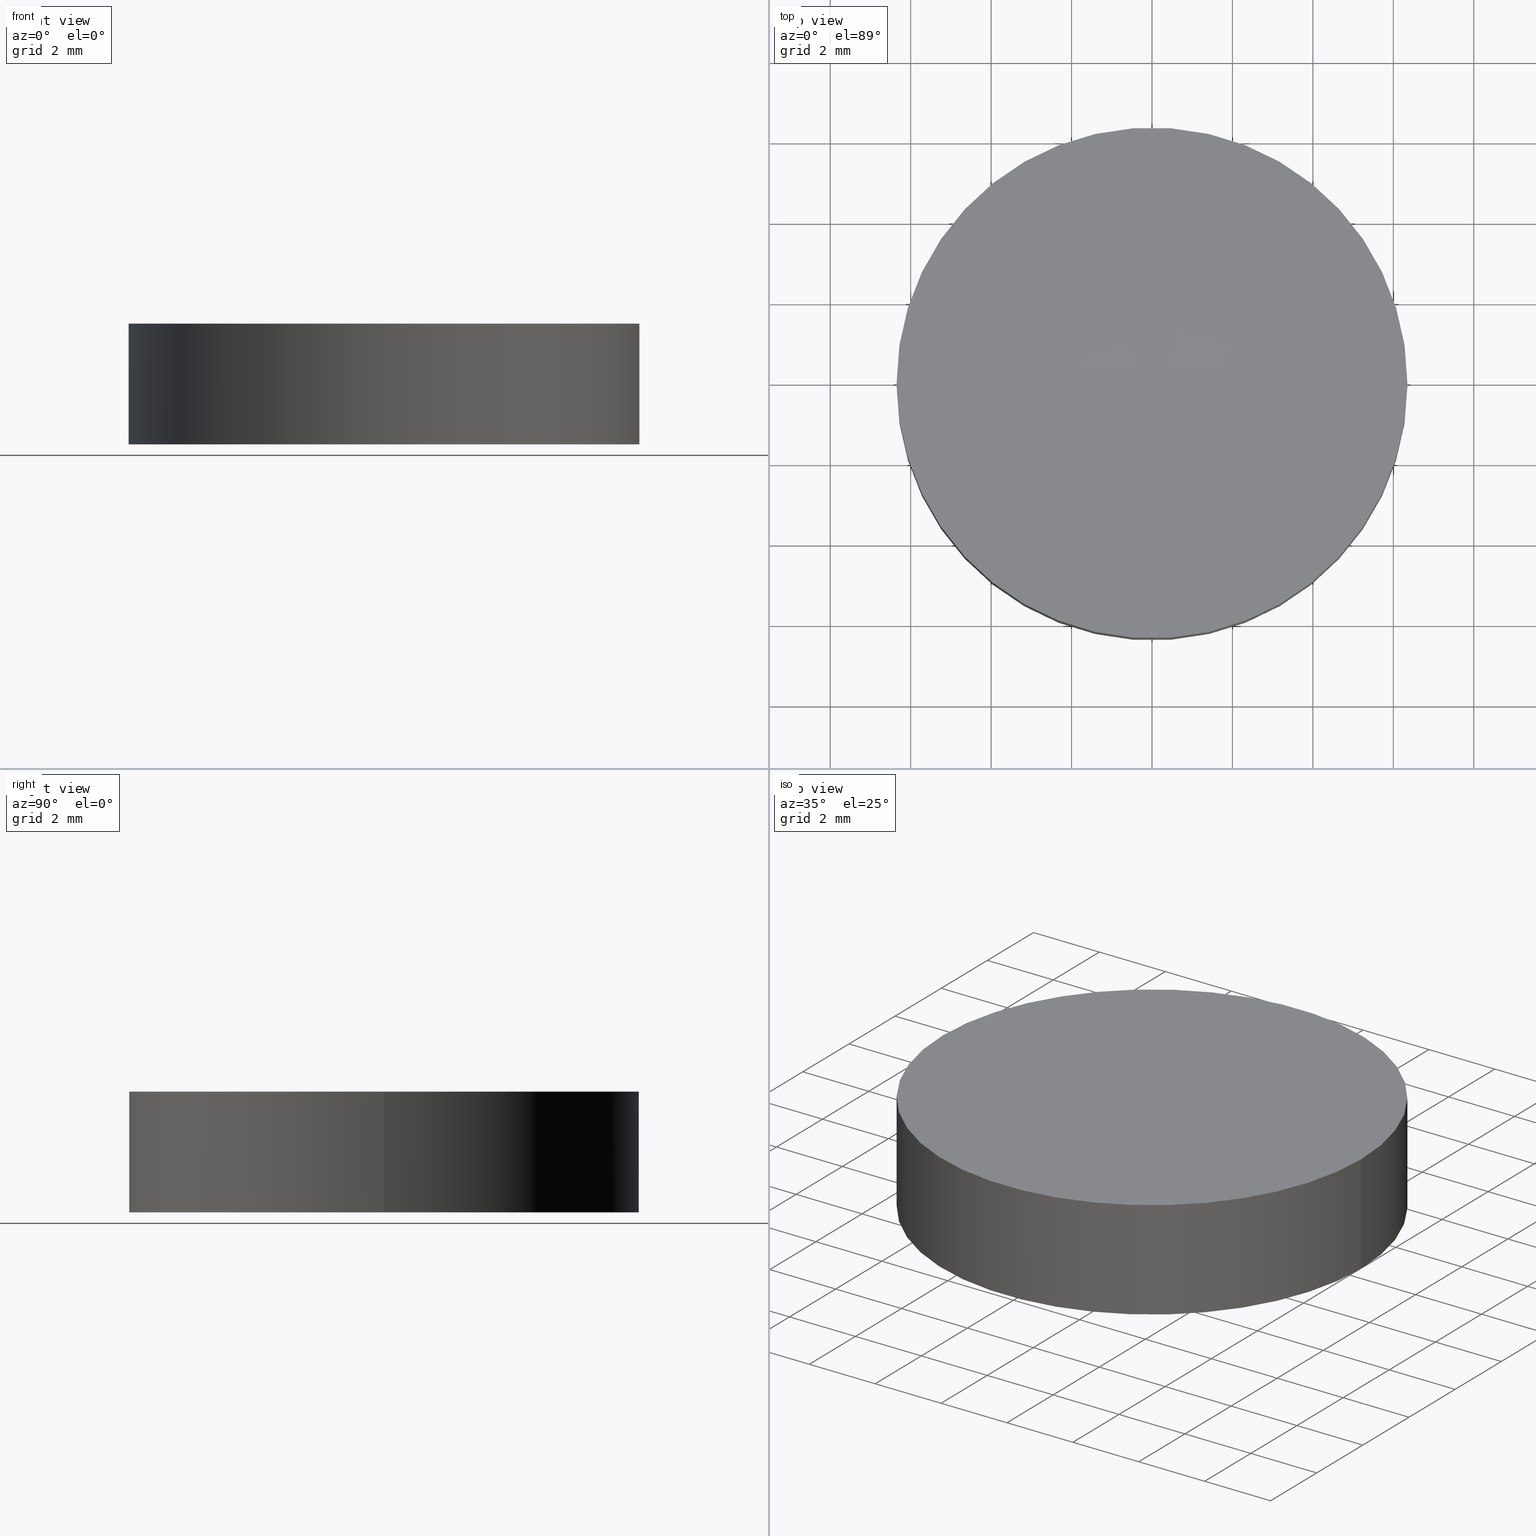
[diagram: canonical four-view strip — front | top / right | iso, engineering-drawing reading convention]
A machine part, canonical four-view strip (front | top / right | iso — engineering-drawing reading convention). The complete STEP part file that produces these views, byte-faithful:
ISO-10303-21;
HEADER;
FILE_DESCRIPTION (( 'STEP AP203' ),
    '1' );
FILE_NAME ('010-1120E_UVFS_PCV_window.STEP',
    '2021-02-25T08:35:38',
    ( '' ),
    ( '' ),
    'SwSTEP 2.0',
    'SolidWorks 2019',
    '' );
FILE_SCHEMA (( 'CONFIG_CONTROL_DESIGN' ));
ENDSEC;

DATA;
#1 = AXIS2_PLACEMENT_3D ( 'NONE', #169, #28, #90 ) ;
#2 = DIRECTION ( 'NONE',  ( -0.000000000000000000, -0.000000000000000000, -1.000000000000000000 ) ) ;
#3 = DIRECTION ( 'NONE',  ( 0.000000000000000000, 0.000000000000000000, 1.000000000000000000 ) ) ;
#4 = CC_DESIGN_PERSON_AND_ORGANIZATION_ASSIGNMENT ( #107, #82, ( #191 ) ) ;
#5 = LOCAL_TIME ( 10, 35, 38.00000000000000000, #178 ) ;
#6 = PERSON_AND_ORGANIZATION ( #131, #138 ) ;
#7 = DATE_TIME_ROLE ( 'creation_date' ) ;
#8 = DATE_TIME_ROLE ( 'classification_date' ) ;
#9 = EDGE_CURVE ( 'NONE', #71, #16, #12, .T. ) ;
#10 = AXIS2_PLACEMENT_3D ( 'NONE', #22, #21, #124 ) ;
#11 = ORIENTED_EDGE ( 'NONE', *, *, #200, .F. ) ;
#12 = LINE ( 'NONE', #195, #154 ) ;
#13 = ORIENTED_EDGE ( 'NONE', *, *, #153, .F. ) ;
#14 = ORIENTED_EDGE ( 'NONE', *, *, #9, .T. ) ;
#15 = CIRCLE ( 'NONE', #101, 6.349999999999999645 ) ;
#16 = VERTEX_POINT ( 'NONE', #58 ) ;
#17 = EDGE_CURVE ( 'NONE', #45, #134, #49, .T. ) ;
#18 = DATE_AND_TIME ( #93, #159 ) ;
#19 = DIRECTION ( 'NONE',  ( 1.000000000000000000, 0.000000000000000000, 0.000000000000000000 ) ) ;
#20 =( GEOMETRIC_REPRESENTATION_CONTEXT ( 3 ) GLOBAL_UNCERTAINTY_ASSIGNED_CONTEXT ( ( #79 ) ) GLOBAL_UNIT_ASSIGNED_CONTEXT ( ( #50, #185, #99 ) ) REPRESENTATION_CONTEXT ( 'NONE', 'WORKASPACE' ) );
#21 = DIRECTION ( 'NONE',  ( 0.000000000000000000, 0.000000000000000000, 1.000000000000000000 ) ) ;
#22 = CARTESIAN_POINT ( 'NONE',  ( 0.000000000000000000, 0.000000000000000000, 0.000000000000000000 ) ) ;
#23 = CALENDAR_DATE ( 2021, 25, 2 ) ;
#24 = CIRCLE ( 'NONE', #140, 1000.000000000000000 ) ;
#25 = PERSON_AND_ORGANIZATION ( #131, #138 ) ;
#26 = PERSON_AND_ORGANIZATION_ROLE ( 'creator' ) ;
#27 = DIRECTION ( 'NONE',  ( -0.000000000000000000, -0.000000000000000000, -1.000000000000000000 ) ) ;
#28 = DIRECTION ( 'NONE',  ( -0.000000000000000000, -0.000000000000000000, -1.000000000000000000 ) ) ;
#29 = AXIS2_PLACEMENT_3D ( 'NONE', #187, #3, #144 ) ;
#30 = CC_DESIGN_PERSON_AND_ORGANIZATION_ASSIGNMENT ( #25, #26, ( #172 ) ) ;
#31 = EDGE_LOOP ( 'NONE', ( #40, #102, #57, #41 ) ) ;
#32 = LOCAL_TIME ( 10, 35, 38.00000000000000000, #193 ) ;
#33 = COORDINATED_UNIVERSAL_TIME_OFFSET ( 2, 0, .AHEAD. ) ;
#34 = DIRECTION ( 'NONE',  ( 0.000000000000000000, 0.000000000000000000, 1.000000000000000000 ) ) ;
#35 = CC_DESIGN_SECURITY_CLASSIFICATION ( #61, ( #70 ) ) ;
#36 = ADVANCED_FACE ( 'NONE', ( #103 ), #137, .F. ) ;
#37 = LINE ( 'NONE', #125, #91 ) ;
#38 = PERSON_AND_ORGANIZATION_ROLE ( 'design_supplier' ) ;
#39 = CALENDAR_DATE ( 2021, 25, 2 ) ;
#40 = ORIENTED_EDGE ( 'NONE', *, *, #200, .T. ) ;
#41 = ORIENTED_EDGE ( 'NONE', *, *, #9, .F. ) ;
#42 = AXIS2_PLACEMENT_3D ( 'NONE', #95, #157, #19 ) ;
#43 = ADVANCED_FACE ( 'NONE', ( #167 ), #117, .T. ) ;
#44 = FACE_OUTER_BOUND ( 'NONE', #31, .T. ) ;
#45 = VERTEX_POINT ( 'NONE', #119 ) ;
#46 = CC_DESIGN_PERSON_AND_ORGANIZATION_ASSIGNMENT ( #112, #54, ( #61 ) ) ;
#47 = CC_DESIGN_APPROVAL ( #63, ( #172 ) ) ;
#48 = MECHANICAL_CONTEXT ( 'NONE', #116, 'mechanical' ) ;
#49 = CIRCLE ( 'NONE', #65, 1000.000000000000227 ) ;
#50 =( LENGTH_UNIT ( ) NAMED_UNIT ( * ) SI_UNIT ( .MILLI., .METRE. ) );
#51 = DIRECTION ( 'NONE',  ( 1.000000000000000000, 1.224646799147353207E-16, 0.000000000000000000 ) ) ;
#52 = FACE_OUTER_BOUND ( 'NONE', #181, .T. ) ;
#53 = PERSON_AND_ORGANIZATION ( #131, #138 ) ;
#54 = PERSON_AND_ORGANIZATION_ROLE ( 'classification_officer' ) ;
#55 = AXIS2_PLACEMENT_3D ( 'NONE', #142, #2, #110 ) ;
#56 = APPROVAL_DATE_TIME ( #18, #63 ) ;
#57 = ORIENTED_EDGE ( 'NONE', *, *, #155, .T. ) ;
#58 = CARTESIAN_POINT ( 'NONE',  ( -6.349999999999999645, 0.000000000000000000, 0.000000000000000000 ) ) ;
#59 = PRODUCT_RELATED_PRODUCT_CATEGORY ( 'detail', '', ( #191 ) ) ;
#60 = DIRECTION ( 'NONE',  ( 1.000000000000000000, 0.000000000000000000, 0.000000000000000000 ) ) ;
#61 = SECURITY_CLASSIFICATION ( '', '', #192 ) ;
#62 = DIRECTION ( 'NONE',  ( -1.000000000000000000, 0.000000000000000000, 0.000000000000000000 ) ) ;
#63 = APPROVAL ( #98, 'UNSPECIFIED' ) ;
#64 = DIRECTION ( 'NONE',  ( 0.000000000000000000, 0.000000000000000000, 1.000000000000000000 ) ) ;
#65 = AXIS2_PLACEMENT_3D ( 'NONE', #182, #72, #196 ) ;
#66 = CARTESIAN_POINT ( 'NONE',  ( 1.240327285323417073E-13, 0.000000000000000000, 3.000000000000002665 ) ) ;
#67 = PERSON_AND_ORGANIZATION_ROLE ( 'creator' ) ;
#68 = PERSON_AND_ORGANIZATION ( #131, #138 ) ;
#69 = APPROVAL_STATUS ( 'not_yet_approved' ) ;
#70 = PRODUCT_DEFINITION_FORMATION_WITH_SPECIFIED_SOURCE ( 'ANY', '', #191, .NOT_KNOWN. ) ;
#71 = VERTEX_POINT ( 'NONE', #184 ) ;
#72 = DIRECTION ( 'NONE',  ( 0.000000000000000000, 1.000000000000000000, -0.000000000000000000 ) ) ;
#73 = EDGE_LOOP ( 'NONE', ( #11, #75, #151 ) ) ;
#74 = LOCAL_TIME ( 10, 35, 38.00000000000000000, #145 ) ;
#75 = ORIENTED_EDGE ( 'NONE', *, *, #194, .T. ) ;
#76 = ADVANCED_FACE ( 'NONE', ( #44 ), #104, .T. ) ;
#77 = DIRECTION ( 'NONE',  ( 1.224646799147353207E-16, -1.000000000000000000, 0.000000000000000000 ) ) ;
#78 = DIRECTION ( 'NONE',  ( -0.000000000000000000, -0.000000000000000000, -1.000000000000000000 ) ) ;
#79 = UNCERTAINTY_MEASURE_WITH_UNIT (LENGTH_MEASURE( 1.000000000000000082E-05 ), #50, 'distance_accuracy_value', 'NONE');
#80 = SPHERICAL_SURFACE ( 'NONE', #42, 1000.000000000000000 ) ;
#81 = CC_DESIGN_DATE_AND_TIME_ASSIGNMENT ( #149, #7, ( #172 ) ) ;
#82 = PERSON_AND_ORGANIZATION_ROLE ( 'design_owner' ) ;
#83 = CARTESIAN_POINT ( 'NONE',  ( 0.000000000000000000, 0.000000000000000000, 0.000000000000000000 ) ) ;
#84 = CALENDAR_DATE ( 2021, 25, 2 ) ;
#85 = APPROVAL_STATUS ( 'not_yet_approved' ) ;
#86 = DATE_AND_TIME ( #39, #32 ) ;
#87 = CARTESIAN_POINT ( 'NONE',  ( 1.240327285323417073E-13, 0.000000000000000000, 1002.979838546757833 ) ) ;
#88 = DIRECTION ( 'NONE',  ( -0.000000000000000000, -0.000000000000000000, -1.000000000000000000 ) ) ;
#89 = CC_DESIGN_DATE_AND_TIME_ASSIGNMENT ( #86, #8, ( #61 ) ) ;
#90 = DIRECTION ( 'NONE',  ( -1.000000000000000000, 0.000000000000000000, 0.000000000000000000 ) ) ;
#91 = VECTOR ( 'NONE', #127, 1000.000000000000000 ) ;
#92 = VERTEX_POINT ( 'NONE', #126 ) ;
#93 = CALENDAR_DATE ( 2021, 25, 2 ) ;
#94 = CC_DESIGN_PERSON_AND_ORGANIZATION_ASSIGNMENT ( #164, #38, ( #70 ) ) ;
#95 = CARTESIAN_POINT ( 'NONE',  ( 1.240327285323417073E-13, 0.000000000000000000, 1002.979838546757833 ) ) ;
#96 = CARTESIAN_POINT ( 'NONE',  ( 1.852650684897093823E-13, 0.000000000000000000, 2.979838546757873630 ) ) ;
#97 = CIRCLE ( 'NONE', #10, 6.349999999999999645 ) ;
#98 = APPROVAL_STATUS ( 'not_yet_approved' ) ;
#99 =( NAMED_UNIT ( * ) SI_UNIT ( $, .STERADIAN. ) SOLID_ANGLE_UNIT ( ) );
#100 = DATE_AND_TIME ( #130, #74 ) ;
#101 = AXIS2_PLACEMENT_3D ( 'NONE', #83, #64, #109 ) ;
#102 = ORIENTED_EDGE ( 'NONE', *, *, #153, .T. ) ;
#103 = FACE_OUTER_BOUND ( 'NONE', #73, .T. ) ;
#104 = CYLINDRICAL_SURFACE ( 'NONE', #1, 6.349999999999999645 ) ;
#105 = CLOSED_SHELL ( 'NONE', ( #36, #76, #43, #170, #139 ) ) ;
#106 = AXIS2_PLACEMENT_3D ( 'NONE', #174, #34, #160 ) ;
#107 = PERSON_AND_ORGANIZATION ( #131, #138 ) ;
#108 = DIRECTION ( 'NONE',  ( 1.000000000000000000, 0.000000000000000000, 0.000000000000000000 ) ) ;
#109 = DIRECTION ( 'NONE',  ( 1.000000000000000000, 0.000000000000000000, 0.000000000000000000 ) ) ;
#110 = DIRECTION ( 'NONE',  ( 1.000000000000000000, 0.000000000000000000, 0.000000000000000000 ) ) ;
#111 = COORDINATED_UNIVERSAL_TIME_OFFSET ( 2, 0, .AHEAD. ) ;
#112 = PERSON_AND_ORGANIZATION ( #131, #138 ) ;
#113 = EDGE_CURVE ( 'NONE', #16, #92, #15, .T. ) ;
#114 = EDGE_LOOP ( 'NONE', ( #13, #165, #14, #183 ) ) ;
#115 = ORIENTED_EDGE ( 'NONE', *, *, #155, .F. ) ;
#116 = APPLICATION_CONTEXT ( 'configuration controlled 3d designs of mechanical parts and assemblies' ) ;
#117 = CYLINDRICAL_SURFACE ( 'NONE', #128, 6.349999999999999645 ) ;
#118 = CC_DESIGN_APPROVAL ( #201, ( #70 ) ) ;
#119 = CARTESIAN_POINT ( 'NONE',  ( 6.350000000006298606, 7.776507174593406237E-16, 3.000000000000002665 ) ) ;
#120 = ORIENTED_EDGE ( 'NONE', *, *, #194, .F. ) ;
#121 = AXIS2_PLACEMENT_3D ( 'NONE', #66, #78, #108 ) ;
#122 = DESIGN_CONTEXT ( 'detailed design', #129, 'design' ) ;
#123 = CIRCLE ( 'NONE', #55, 6.350000000006174261 ) ;
#124 = DIRECTION ( 'NONE',  ( 1.000000000000000000, 0.000000000000000000, 0.000000000000000000 ) ) ;
#125 = CARTESIAN_POINT ( 'NONE',  ( 6.349999999999999645, 7.776507174585692163E-16, 3.000000000000000000 ) ) ;
#126 = CARTESIAN_POINT ( 'NONE',  ( 6.349999999999999645, 7.776507174585692163E-16, 0.000000000000000000 ) ) ;
#127 = DIRECTION ( 'NONE',  ( -0.000000000000000000, -0.000000000000000000, -1.000000000000000000 ) ) ;
#128 = AXIS2_PLACEMENT_3D ( 'NONE', #168, #88, #62 ) ;
#129 = APPLICATION_CONTEXT ( 'configuration controlled 3d designs of mechanical parts and assemblies' ) ;
#130 = CALENDAR_DATE ( 2021, 25, 2 ) ;
#131 = PERSON ( 'UNSPECIFIED', 'UNSPECIFIED', 'UNSPECIFIED', ('UNSPECIFIED'), ('UNSPECIFIED'), ('UNSPECIFIED') ) ;
#132 = DATE_AND_TIME ( #84, #5 ) ;
#133 = APPROVAL_ROLE ( '' ) ;
#134 = VERTEX_POINT ( 'NONE', #96 ) ;
#135 = DIRECTION ( 'NONE',  ( 0.000000000000000000, -1.000000000000000000, -0.000000000000000000 ) ) ;
#136 = MANIFOLD_SOLID_BREP ( 'Cut-Revolve1', #105 ) ;
#137 = SPHERICAL_SURFACE ( 'NONE', #180, 1000.000000000000000 ) ;
#138 = ORGANIZATION ( 'UNSPECIFIED', 'UNSPECIFIED', '' ) ;
#139 = ADVANCED_FACE ( 'NONE', ( #143 ), #80, .F. ) ;
#140 = AXIS2_PLACEMENT_3D ( 'NONE', #161, #77, #51 ) ;
#141 = CC_DESIGN_APPROVAL ( #197, ( #61 ) ) ;
#142 = CARTESIAN_POINT ( 'NONE',  ( 1.240327285323417073E-13, 0.000000000000000000, 3.000000000000002665 ) ) ;
#143 = FACE_OUTER_BOUND ( 'NONE', #199, .T. ) ;
#144 = DIRECTION ( 'NONE',  ( 1.000000000000000000, 0.000000000000000000, -0.000000000000000000 ) ) ;
#145 = COORDINATED_UNIVERSAL_TIME_OFFSET ( 2, 0, .AHEAD. ) ;
#146 = APPROVAL_PERSON_ORGANIZATION ( #188, #63, #173 ) ;
#147 = SHAPE_DEFINITION_REPRESENTATION ( #177, #158 ) ;
#148 = APPROVAL_ROLE ( '' ) ;
#149 = DATE_AND_TIME ( #23, #186 ) ;
#150 = APPROVAL_PERSON_ORGANIZATION ( #6, #201, #148 ) ;
#151 = ORIENTED_EDGE ( 'NONE', *, *, #17, .F. ) ;
#152 = ORIENTED_EDGE ( 'NONE', *, *, #17, .T. ) ;
#153 = EDGE_CURVE ( 'NONE', #45, #92, #37, .T. ) ;
#154 = VECTOR ( 'NONE', #27, 1000.000000000000000 ) ;
#155 = EDGE_CURVE ( 'NONE', #92, #16, #97, .T. ) ;
#156 = ORIENTED_EDGE ( 'NONE', *, *, #113, .F. ) ;
#157 = DIRECTION ( 'NONE',  ( 0.000000000000000000, -1.000000000000000000, -0.000000000000000000 ) ) ;
#158 = ADVANCED_BREP_SHAPE_REPRESENTATION ( '010-1120E_UVFS_PCV_window', ( #136, #106 ), #20 ) ;
#159 = LOCAL_TIME ( 10, 35, 38.00000000000000000, #33 ) ;
#160 = DIRECTION ( 'NONE',  ( 1.000000000000000000, 0.000000000000000000, 0.000000000000000000 ) ) ;
#161 = CARTESIAN_POINT ( 'NONE',  ( 1.240327285323417073E-13, 0.000000000000000000, 1002.979838546757833 ) ) ;
#162 = APPROVAL_DATE_TIME ( #100, #197 ) ;
#163 = APPROVAL_PERSON_ORGANIZATION ( #53, #197, #133 ) ;
#164 = PERSON_AND_ORGANIZATION ( #131, #138 ) ;
#165 = ORIENTED_EDGE ( 'NONE', *, *, #166, .T. ) ;
#166 = EDGE_CURVE ( 'NONE', #45, #71, #123, .T. ) ;
#167 = FACE_OUTER_BOUND ( 'NONE', #114, .T. ) ;
#168 = CARTESIAN_POINT ( 'NONE',  ( 0.000000000000000000, 0.000000000000000000, 3.000000000000000000 ) ) ;
#169 = CARTESIAN_POINT ( 'NONE',  ( 0.000000000000000000, 0.000000000000000000, 3.000000000000000000 ) ) ;
#170 = ADVANCED_FACE ( 'NONE', ( #52 ), #176, .F. ) ;
#171 = ORIENTED_EDGE ( 'NONE', *, *, #166, .F. ) ;
#172 = PRODUCT_DEFINITION ( 'UNKNOWN', '', #70, #122 ) ;
#173 = APPROVAL_ROLE ( '' ) ;
#174 = CARTESIAN_POINT ( 'NONE',  ( 0.000000000000000000, 0.000000000000000000, 0.000000000000000000 ) ) ;
#175 = APPLICATION_PROTOCOL_DEFINITION ( 'international standard', 'config_control_design', 1994, #116 ) ;
#176 = PLANE ( 'NONE',  #29 ) ;
#177 = PRODUCT_DEFINITION_SHAPE ( 'NONE', 'NONE',  #172 ) ;
#178 = COORDINATED_UNIVERSAL_TIME_OFFSET ( 2, 0, .AHEAD. ) ;
#179 = CC_DESIGN_PERSON_AND_ORGANIZATION_ASSIGNMENT ( #68, #67, ( #70 ) ) ;
#180 = AXIS2_PLACEMENT_3D ( 'NONE', #87, #135, #60 ) ;
#181 = EDGE_LOOP ( 'NONE', ( #156, #115 ) ) ;
#182 = CARTESIAN_POINT ( 'NONE',  ( 1.240327285323417073E-13, 0.000000000000000000, 1002.979838546757833 ) ) ;
#183 = ORIENTED_EDGE ( 'NONE', *, *, #113, .T. ) ;
#184 = CARTESIAN_POINT ( 'NONE',  ( -6.350000000006049916, 0.000000000000000000, 3.000000000000002665 ) ) ;
#185 =( NAMED_UNIT ( * ) PLANE_ANGLE_UNIT ( ) SI_UNIT ( $, .RADIAN. ) );
#186 = LOCAL_TIME ( 10, 35, 38.00000000000000000, #111 ) ;
#187 = CARTESIAN_POINT ( 'NONE',  ( 0.000000000000000000, 0.000000000000000000, 0.000000000000000000 ) ) ;
#188 = PERSON_AND_ORGANIZATION ( #131, #138 ) ;
#189 = APPLICATION_PROTOCOL_DEFINITION ( 'international standard', 'config_control_design', 1994, #129 ) ;
#190 = APPROVAL_DATE_TIME ( #132, #201 ) ;
#191 = PRODUCT ( '010-1120E_UVFS_PCV_window', '010-1120E_UVFS_PCV_window', '', ( #48 ) ) ;
#192 = SECURITY_CLASSIFICATION_LEVEL ( 'unclassified' ) ;
#193 = COORDINATED_UNIVERSAL_TIME_OFFSET ( 2, 0, .AHEAD. ) ;
#194 = EDGE_CURVE ( 'NONE', #71, #134, #24, .T. ) ;
#195 = CARTESIAN_POINT ( 'NONE',  ( -6.349999999999999645, 0.000000000000000000, 3.000000000000000000 ) ) ;
#196 = DIRECTION ( 'NONE',  ( 0.000000000000000000, 0.000000000000000000, 1.000000000000000000 ) ) ;
#197 = APPROVAL ( #69, 'UNSPECIFIED' ) ;
#198 = CIRCLE ( 'NONE', #121, 6.350000000006174261 ) ;
#199 = EDGE_LOOP ( 'NONE', ( #120, #171, #152 ) ) ;
#200 = EDGE_CURVE ( 'NONE', #71, #45, #198, .T. ) ;
#201 = APPROVAL ( #85, 'UNSPECIFIED' ) ;
ENDSEC;
END-ISO-10303-21;
